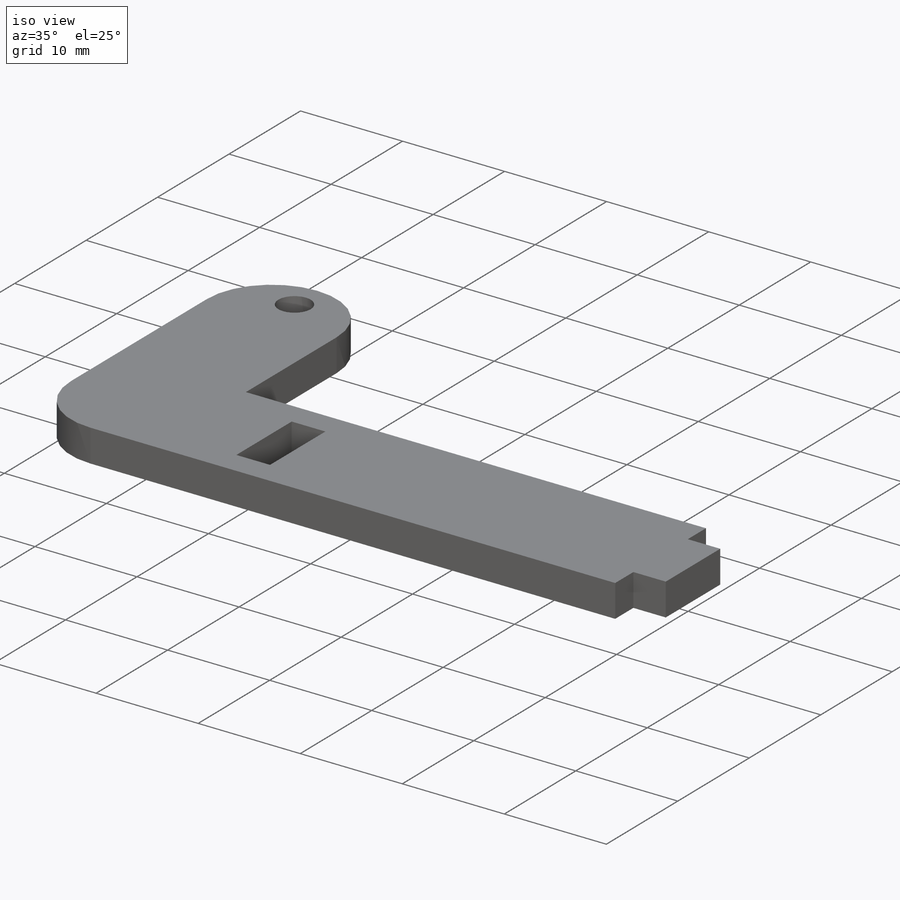
[diagram: iso view]
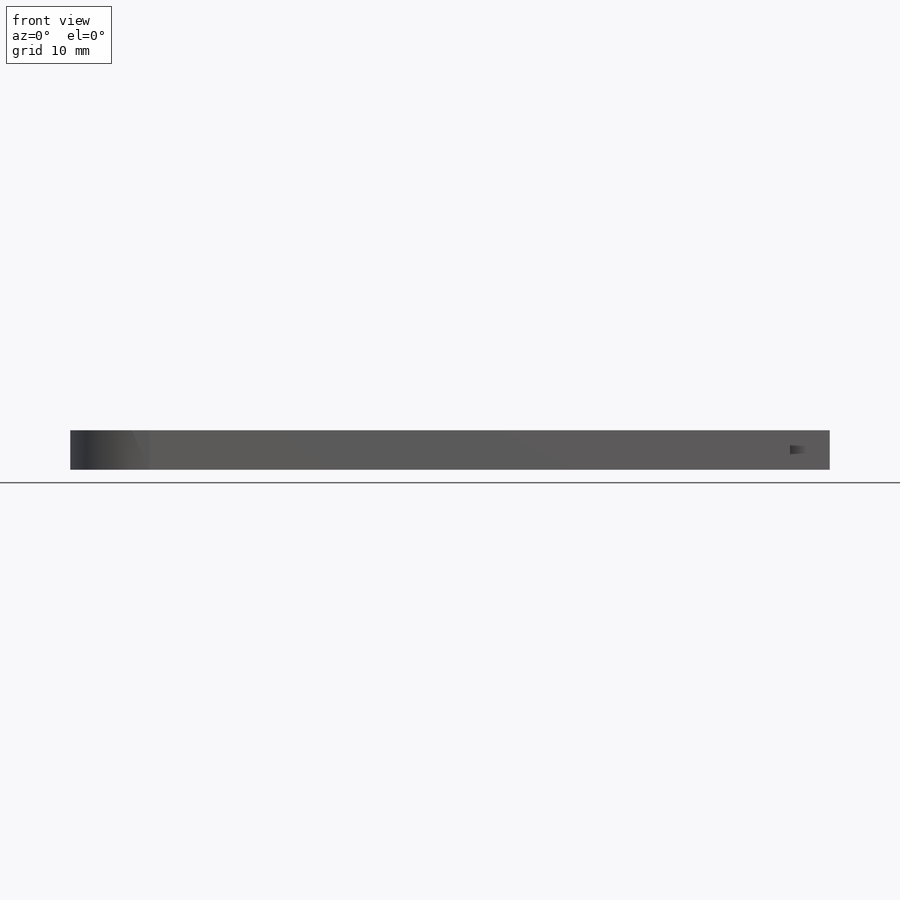
[diagram: front view]
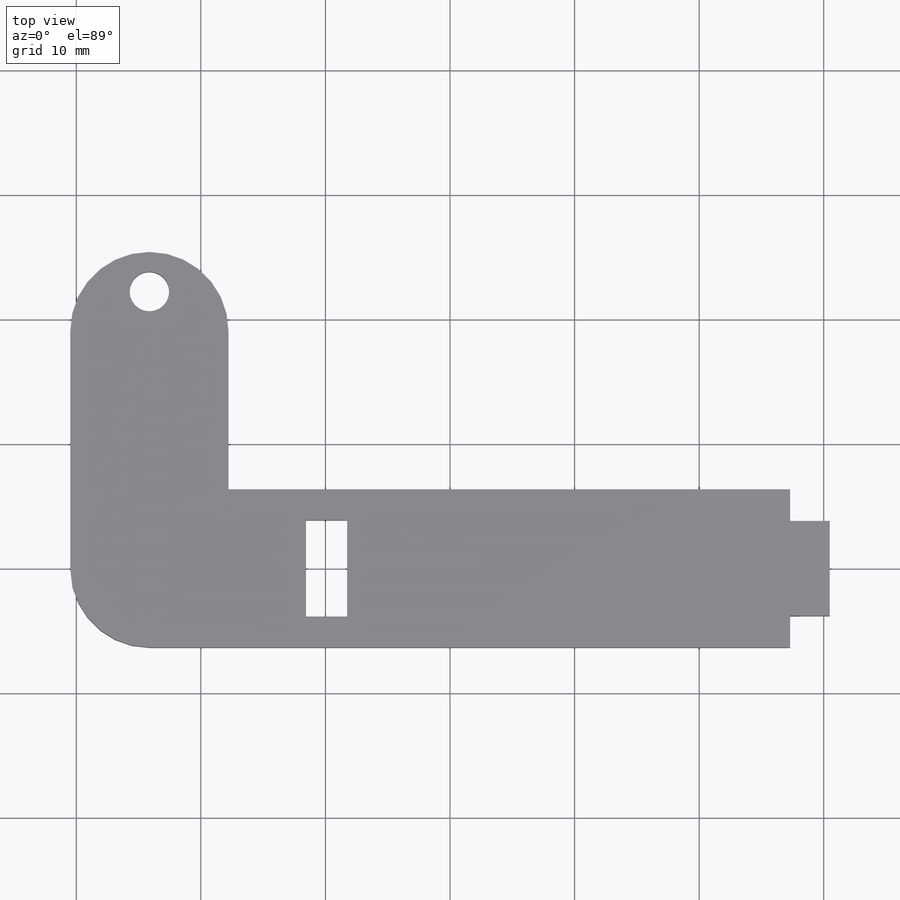
[diagram: top view]
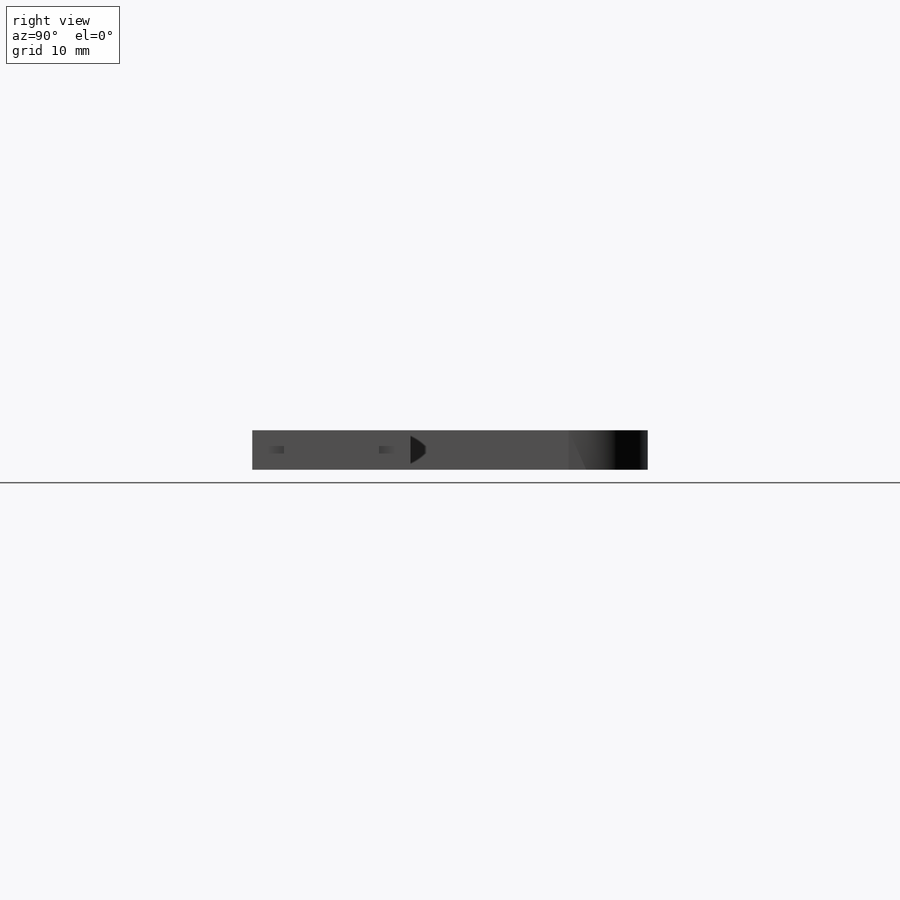
[diagram: right view]
SOLIDWORKS PART (.sldprt)
format: sldprt  version: not decoded by parser v0  size: 192,000 bytes
history: native  units: mm
features: fillet x3, sketch x2, material x1, extrude x1, cut_extrude x1 (+13 scaffold rows collapsed)
feature tree (21):
  scaffold x13  (default folders/planes/origin — collapsed)
  material  "Material <not specified>"
  sketch  "Sketch1"  dims[c1.D3=3.175mm c1.D1=~34.982588mm c1.D2=~85.890085mm c2.D1=60.96mm c2.D2=12.7mm c2.D4=8.89mm c2.D5=6.35mm c3.D4=6.35mm c3.D6=~4.14911mm c3.D7=~3.385472mm c4.D6=~7.088332mm c4.D7=~2.433308mm c5.D6=3.302mm c5.D7=7.747mm c5.D8=2.4765mm c5.D9=38.735mm c5.D10=~9.681782mm c5.D11=~10.507403mm c5.D5=19.05mm c6.D10=12.7mm c6.D11=3.175mm]
  extrude  "Boss-Extrude1"  Depth=3.175mm
  sketch  "Sketch3"  dims[c1.D1=~2.583156mm c1.D2=~2.845365mm c2.D1=~4.916599mm c2.D2=~2.845365mm c3.D1=3.175mm c3.D2=3.175mm c3.D3=2.54mm c3.D4=2.54mm c4.D1=~2.309678mm c4.D2=3.175mm c5.D1=2.54mm c5.D2=3.175mm c5.D3=~2.615456mm c5.D4=3.175mm c6.D3=2.54mm c6.D4=3.175mm]
  cut_extrude  "Cut-Extrude1"  Depth=3.175mm
  fillet  "Fillet1"  Radius=6.35mm
  fillet  "Fillet2"  Radius=6.35mm
  fillet  "Fillet3"  Radius=6.35mm
decode coverage: 7 of 7 modeling features carry decoded parameters
note: ~ marks probable driven/reference dimensions
note: suppression state not decoded; provenance and decode notes live in map.json
